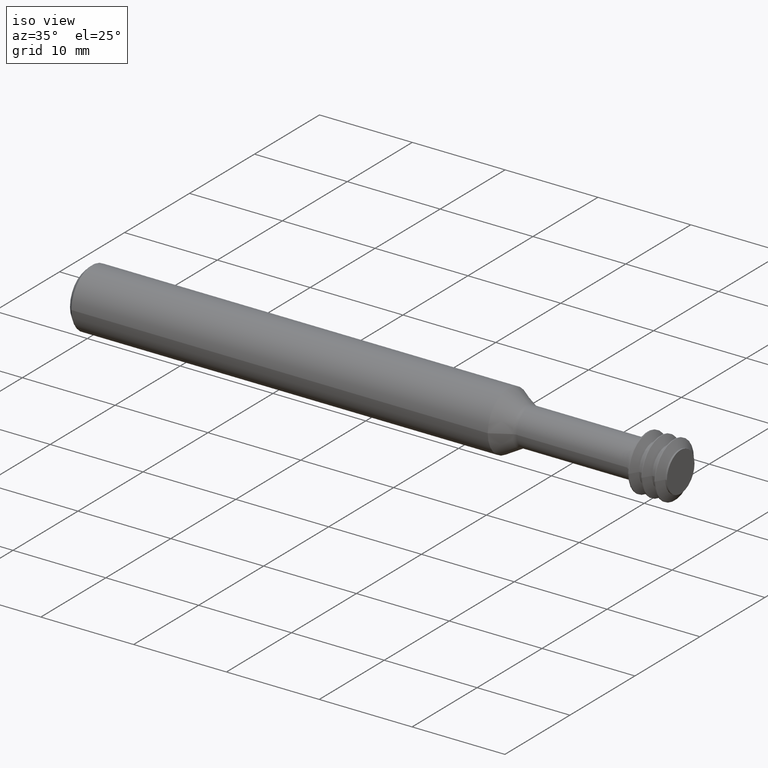
[diagram: clean part render]
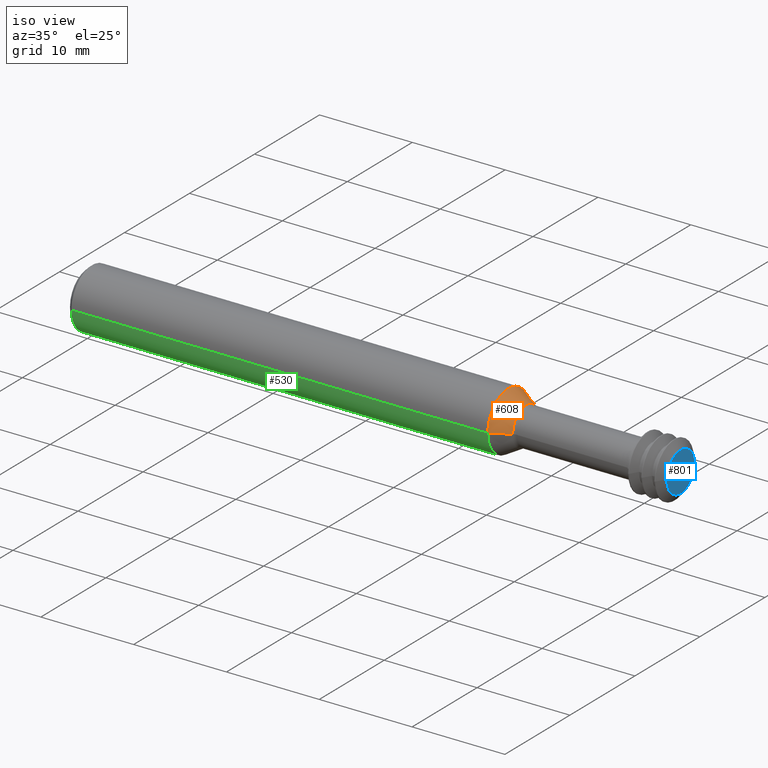
[diagram: same view with three faces highlighted in distinct colors, each labeled with its STEP entity id]
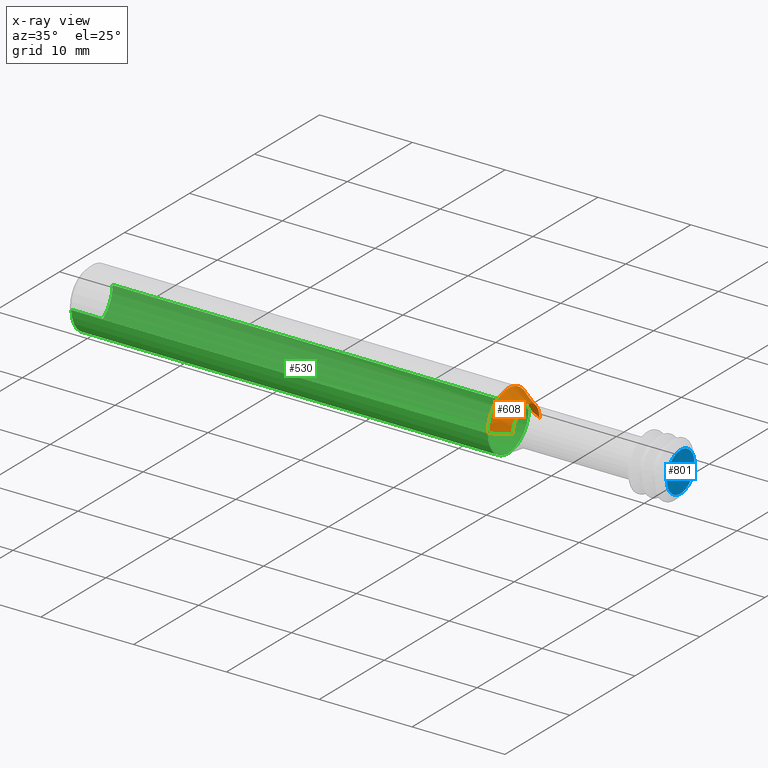
[diagram: x-ray of the same camera — body ghosted, the three highlighted faces saturated]
A machine part, iso view with three faces highlighted in distinct colors.
The next image is the same camera in x-ray (body ghosted, the three faces saturated) — at least one of them is partly hidden behind the body in this view.
Their STEP definitions:

[orange] entity #608 — the highlighted conical surface has half-angle 30 deg.
#109 = CARTESIAN_POINT ( 'NONE',  ( 1.861198729810778163, -6.163767965912286557E-19, 0.000000000000000000 ) ) ;
#143 = VERTEX_POINT ( 'NONE', #1057 ) ;
#174 = DIRECTION ( 'NONE',  ( 0.000000000000000000, -1.000000000000000000, 0.000000000000000000 ) ) ;
#220 = DIRECTION ( 'NONE',  ( 0.000000000000000000, -1.000000000000000000, 0.000000000000000000 ) ) ;
#228 = LINE ( 'NONE', #639, #436 ) ;
#229 = CIRCLE ( 'NONE', #384, 0.1248500000000000026 ) ;
#245 = VECTOR ( 'NONE', #896, 39.37007874015748143 ) ;
#268 = VERTEX_POINT ( 'NONE', #415 ) ;
#297 = AXIS2_PLACEMENT_3D ( 'NONE', #109, #1003, #174 ) ;
#311 = CONICAL_SURFACE ( 'NONE', #915, 0.08134936490538911824, 0.5235987755983014802 ) ;
#327 = CARTESIAN_POINT ( 'NONE',  ( 1.861198729810778163, 0.08134936490538911824, 9.962423934405481643E-18 ) ) ;
#341 = ORIENTED_EDGE ( 'NONE', *, *, #351, .T. ) ;
#351 = EDGE_CURVE ( 'NONE', #834, #143, #901, .T. ) ;
#353 = CARTESIAN_POINT ( 'NONE',  ( 1.861198729810778163, -0.08134936490538911824, 0.000000000000000000 ) ) ;
#384 = AXIS2_PLACEMENT_3D ( 'NONE', #554, #700, #1045 ) ;
#415 = CARTESIAN_POINT ( 'NONE',  ( 1.785853419665398789, 0.1248500000000000026, 1.528971528735470422E-17 ) ) ;
#425 = ORIENTED_EDGE ( 'NONE', *, *, #885, .F. ) ;
#436 = VECTOR ( 'NONE', #874, 39.37007874015748143 ) ;
#495 = CARTESIAN_POINT ( 'NONE',  ( 1.785853419665398789, -0.1248500000000000026, 0.000000000000000000 ) ) ;
#542 = EDGE_LOOP ( 'NONE', ( #341, #710, #425, #588 ) ) ;
#554 = CARTESIAN_POINT ( 'NONE',  ( 1.785853419665398789, -5.995046227301385672E-19, 0.000000000000000000 ) ) ;
#588 = ORIENTED_EDGE ( 'NONE', *, *, #956, .F. ) ;
#592 = EDGE_CURVE ( 'NONE', #143, #268, #812, .T. ) ;
#608 = ADVANCED_FACE ( 'NONE', ( #892 ), #311, .T. ) ;
#639 = CARTESIAN_POINT ( 'NONE',  ( 1.861198729810778163, -0.08134936490538911824, 0.000000000000000000 ) ) ;
#700 = DIRECTION ( 'NONE',  ( -1.000000000000000000, 2.239313081137374464E-19, -0.000000000000000000 ) ) ;
#710 = ORIENTED_EDGE ( 'NONE', *, *, #592, .T. ) ;
#735 = DIRECTION ( 'NONE',  ( -1.000000000000000000, 2.239313081137374464E-19, -0.000000000000000000 ) ) ;
#812 = LINE ( 'NONE', #327, #245 ) ;
#834 = VERTEX_POINT ( 'NONE', #353 ) ;
#874 = DIRECTION ( 'NONE',  ( -0.8660254037844373753, -0.5000000000000022204, 0.000000000000000000 ) ) ;
#885 = EDGE_CURVE ( 'NONE', #1058, #268, #229, .T. ) ;
#892 = FACE_OUTER_BOUND ( 'NONE', #542, .T. ) ;
#896 = DIRECTION ( 'NONE',  ( -0.8660254037844373753, 0.5000000000000022204, 6.123233995736793153E-17 ) ) ;
#901 = CIRCLE ( 'NONE', #297, 0.08134936490538911824 ) ;
#915 = AXIS2_PLACEMENT_3D ( 'NONE', #967, #735, #220 ) ;
#956 = EDGE_CURVE ( 'NONE', #834, #1058, #228, .T. ) ;
#967 = CARTESIAN_POINT ( 'NONE',  ( 1.861198729810778163, -6.163767965912286557E-19, 0.000000000000000000 ) ) ;
#1003 = DIRECTION ( 'NONE',  ( -1.000000000000000000, 2.239313081137374464E-19, -0.000000000000000000 ) ) ;
#1045 = DIRECTION ( 'NONE',  ( 0.000000000000000000, -1.000000000000000000, 0.000000000000000000 ) ) ;
#1057 = CARTESIAN_POINT ( 'NONE',  ( 1.861198729810778163, 0.08134936490538911824, 1.262606961088009447E-17 ) ) ;
#1058 = VERTEX_POINT ( 'NONE', #495 ) ;

[blue] entity #801 — the highlighted planar face has unit normal (-1, 0, -0).
#10 = CARTESIAN_POINT ( 'NONE',  ( 2.516989999999999839, -7.632289935742705271E-19, 0.000000000000000000 ) ) ;
#114 = DIRECTION ( 'NONE',  ( -0.000000000000000000, 0.000000000000000000, 1.000000000000000000 ) ) ;
#120 = DIRECTION ( 'NONE',  ( 1.000000000000000000, 0.000000000000000000, 0.000000000000000000 ) ) ;
#195 = EDGE_LOOP ( 'NONE', ( #817, #946 ) ) ;
#259 = DIRECTION ( 'NONE',  ( 0.000000000000000000, 0.000000000000000000, 1.000000000000000000 ) ) ;
#271 = CARTESIAN_POINT ( 'NONE',  ( 2.516989999999999839, 0.08378605533475004530, 1.026083244788846534E-17 ) ) ;
#295 = VERTEX_POINT ( 'NONE', #271 ) ;
#343 = EDGE_CURVE ( 'NONE', #872, #295, #525, .T. ) ;
#363 = PLANE ( 'NONE',  #606 ) ;
#525 = CIRCLE ( 'NONE', #716, 0.08378605533475004530 ) ;
#535 = EDGE_CURVE ( 'NONE', #295, #872, #574, .T. ) ;
#574 = CIRCLE ( 'NONE', #746, 0.08378605533475004530 ) ;
#606 = AXIS2_PLACEMENT_3D ( 'NONE', #826, #744, #114 ) ;
#716 = AXIS2_PLACEMENT_3D ( 'NONE', #10, #913, #259 ) ;
#744 = DIRECTION ( 'NONE',  ( -1.000000000000000000, 0.000000000000000000, -0.000000000000000000 ) ) ;
#746 = AXIS2_PLACEMENT_3D ( 'NONE', #855, #120, #774 ) ;
#774 = DIRECTION ( 'NONE',  ( 0.000000000000000000, 0.000000000000000000, 1.000000000000000000 ) ) ;
#801 = ADVANCED_FACE ( 'NONE', ( #1015 ), #363, .F. ) ;
#817 = ORIENTED_EDGE ( 'NONE', *, *, #343, .T. ) ;
#826 = CARTESIAN_POINT ( 'NONE',  ( 2.516989999999999839, 0.2500000000000000000, -0.2500000000000000000 ) ) ;
#855 = CARTESIAN_POINT ( 'NONE',  ( 2.516989999999999839, -7.632289935742705271E-19, 0.000000000000000000 ) ) ;
#872 = VERTEX_POINT ( 'NONE', #960 ) ;
#913 = DIRECTION ( 'NONE',  ( 1.000000000000000000, 0.000000000000000000, 0.000000000000000000 ) ) ;
#946 = ORIENTED_EDGE ( 'NONE', *, *, #535, .T. ) ;
#960 = CARTESIAN_POINT ( 'NONE',  ( 2.516989999999999839, -0.08378605533475004530, 0.000000000000000000 ) ) ;
#1015 = FACE_OUTER_BOUND ( 'NONE', #195, .T. ) ;

[green] entity #530 — the highlighted cylindrical surface (edge-blend (fillet) strip) has radius 3.1712 mm, axis along (-1, 0, -0).
#2 = LINE ( 'NONE', #961, #390 ) ;
#7 = CIRCLE ( 'NONE', #521, 0.1248500000000000026 ) ;
#34 = CARTESIAN_POINT ( 'NONE',  ( 2.350000000000000089, -7.258347044323575049E-19, 0.000000000000000000 ) ) ;
#35 = CARTESIAN_POINT ( 'NONE',  ( 2.350000000000000089, 0.1248500000000000026, 1.528971528735470422E-17 ) ) ;
#59 = LINE ( 'NONE', #35, #679 ) ;
#86 = EDGE_CURVE ( 'NONE', #268, #154, #59, .T. ) ;
#152 = DIRECTION ( 'NONE',  ( -1.000000000000000000, 2.239313081137374464E-19, -0.000000000000000000 ) ) ;
#154 = VERTEX_POINT ( 'NONE', #226 ) ;
#210 = DIRECTION ( 'NONE',  ( 0.000000000000000000, -1.000000000000000000, 0.000000000000000000 ) ) ;
#211 = DIRECTION ( 'NONE',  ( -1.000000000000000000, 2.239313081137374464E-19, -0.000000000000000000 ) ) ;
#226 = CARTESIAN_POINT ( 'NONE',  ( 0.02000000000000005940, 0.1248500000000000026, 0.000000000000000000 ) ) ;
#263 = AXIS2_PLACEMENT_3D ( 'NONE', #492, #729, #476 ) ;
#268 = VERTEX_POINT ( 'NONE', #415 ) ;
#312 = ORIENTED_EDGE ( 'NONE', *, *, #642, .F. ) ;
#346 = EDGE_LOOP ( 'NONE', ( #518, #894, #877, #312 ) ) ;
#352 = VERTEX_POINT ( 'NONE', #502 ) ;
#390 = VECTOR ( 'NONE', #152, 39.37007874015748143 ) ;
#415 = CARTESIAN_POINT ( 'NONE',  ( 1.785853419665398789, 0.1248500000000000026, 1.528971528735470422E-17 ) ) ;
#447 = DIRECTION ( 'NONE',  ( 0.000000000000000000, -1.000000000000000000, 0.000000000000000000 ) ) ;
#451 = EDGE_CURVE ( 'NONE', #268, #1058, #7, .T. ) ;
#476 = DIRECTION ( 'NONE',  ( 0.000000000000000000, -1.000000000000000000, 0.000000000000000000 ) ) ;
#492 = CARTESIAN_POINT ( 'NONE',  ( 0.02000000000000005940, -2.040747565273492847E-19, 0.000000000000000000 ) ) ;
#495 = CARTESIAN_POINT ( 'NONE',  ( 1.785853419665398789, -0.1248500000000000026, 0.000000000000000000 ) ) ;
#502 = CARTESIAN_POINT ( 'NONE',  ( 0.02000000000000005940, -0.1248500000000000026, 1.528971528735470422E-17 ) ) ;
#518 = ORIENTED_EDGE ( 'NONE', *, *, #86, .F. ) ;
#521 = AXIS2_PLACEMENT_3D ( 'NONE', #701, #632, #447 ) ;
#530 = ADVANCED_FACE ( 'NONE', ( #1024 ), #849, .T. ) ;
#582 = EDGE_CURVE ( 'NONE', #1058, #352, #2, .T. ) ;
#609 = DIRECTION ( 'NONE',  ( -1.000000000000000000, 2.239313081137374464E-19, -0.000000000000000000 ) ) ;
#632 = DIRECTION ( 'NONE',  ( -1.000000000000000000, 2.239313081137374464E-19, -0.000000000000000000 ) ) ;
#642 = EDGE_CURVE ( 'NONE', #154, #352, #828, .T. ) ;
#679 = VECTOR ( 'NONE', #211, 39.37007874015748143 ) ;
#701 = CARTESIAN_POINT ( 'NONE',  ( 1.785853419665398789, -5.995046227301385672E-19, 0.000000000000000000 ) ) ;
#729 = DIRECTION ( 'NONE',  ( -1.000000000000000000, 2.239313081137374464E-19, -0.000000000000000000 ) ) ;
#828 = CIRCLE ( 'NONE', #263, 0.1248500000000000026 ) ;
#849 = CYLINDRICAL_SURFACE ( 'NONE', #1036, 0.1248500000000000026 ) ;
#877 = ORIENTED_EDGE ( 'NONE', *, *, #582, .T. ) ;
#894 = ORIENTED_EDGE ( 'NONE', *, *, #451, .T. ) ;
#961 = CARTESIAN_POINT ( 'NONE',  ( 2.350000000000000089, -0.1248500000000000026, 0.000000000000000000 ) ) ;
#1024 = FACE_OUTER_BOUND ( 'NONE', #346, .T. ) ;
#1036 = AXIS2_PLACEMENT_3D ( 'NONE', #34, #609, #210 ) ;
#1058 = VERTEX_POINT ( 'NONE', #495 ) ;